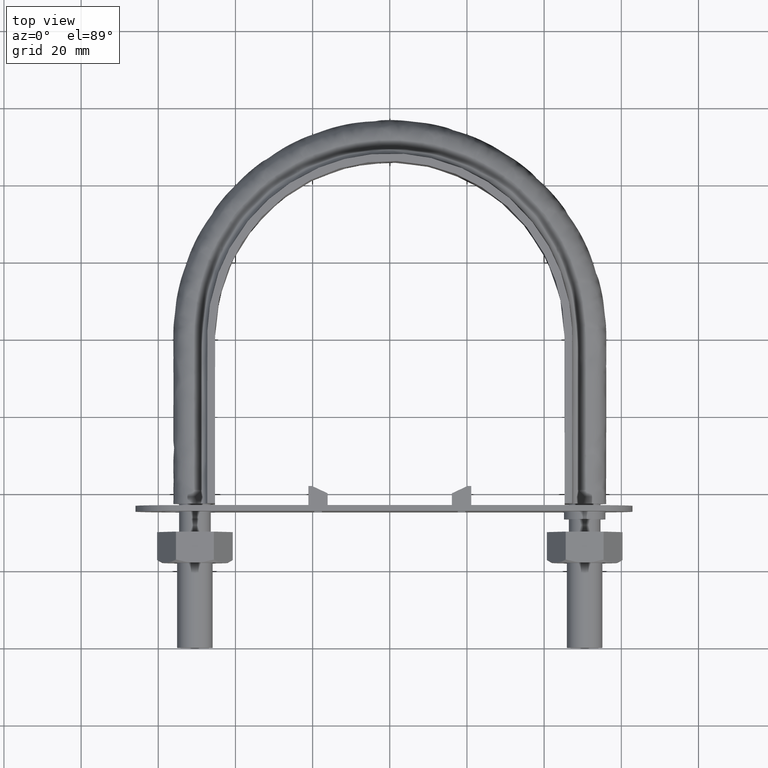
[diagram: clean part render]
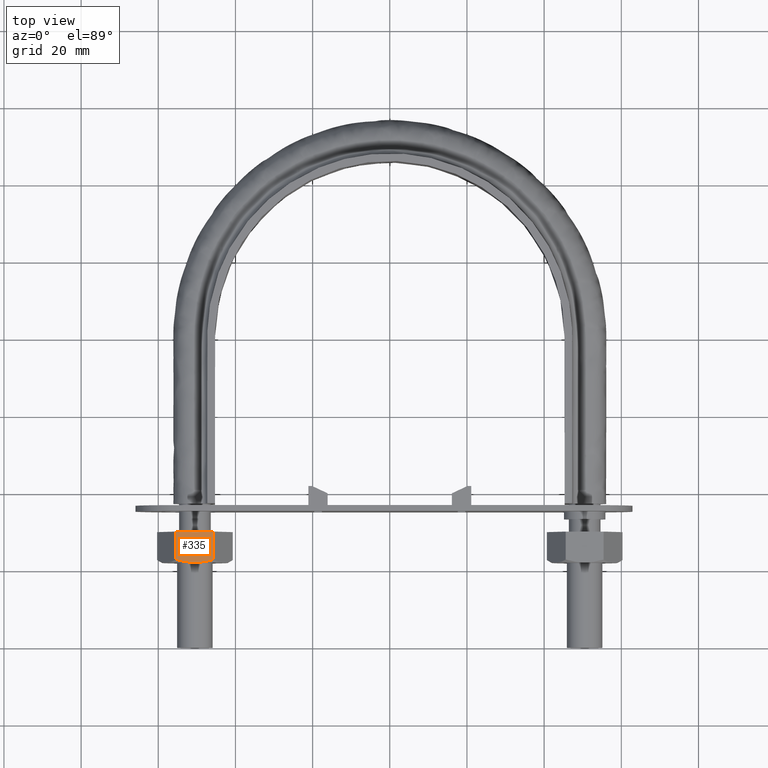
[diagram: same view with one face highlighted and labeled with its STEP entity id]
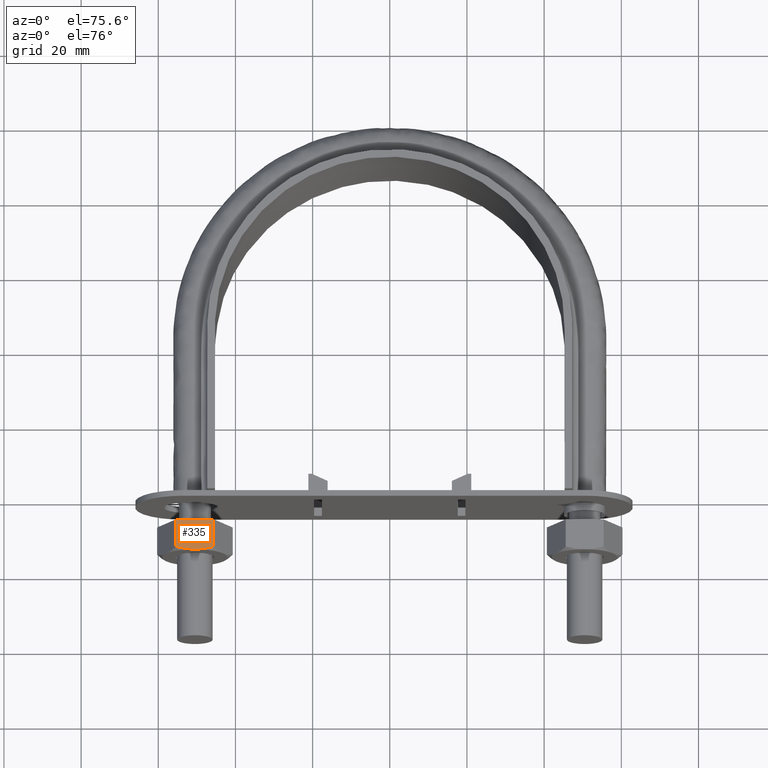
[diagram: same view with one face highlighted and labeled with its STEP entity id]
A machine part, top view. The second image highlights one B-rep face of the part: STEP entity #335.
A second angle (auxiliary view) of the same face is appended — the face is thin or edge-on in the first view.
In plain terms, the highlighted planar face has unit normal (-0, 0, -1).
Its self-contained STEP definition (entity closure, byte-faithful):
#335 = ADVANCED_FACE( '', ( #537 ), #538, .F. );
#537 = FACE_OUTER_BOUND( '', #1604, .T. );
#538 = PLANE( '', #1605 );
#1604 = EDGE_LOOP( '', ( #2178, #2179, #2180, #2181, #2182 ) );
#1605 = AXIS2_PLACEMENT_3D( '', #2183, #2184, #2185 );
#2178 = ORIENTED_EDGE( '', *, *, #2645, .F. );
#2179 = ORIENTED_EDGE( '', *, *, #2646, .F. );
#2180 = ORIENTED_EDGE( '', *, *, #2644, .F. );
#2181 = ORIENTED_EDGE( '', *, *, #2647, .F. );
#2182 = ORIENTED_EDGE( '', *, *, #2648, .F. );
#2183 = CARTESIAN_POINT( '', ( -55.4074772876123, 30.0000000000000, 8.50000000028695 ) );
#2184 = DIRECTION( '', ( -5.87450643685378E-011, 6.12303177055068E-017, -1.00000000000000 ) );
#2185 = DIRECTION( '', ( -1.00000000000000, 0.000000000000000, 5.87450643685378E-011 ) );
#2644 = EDGE_CURVE( '', #2972, #2967, #2974, .T. );
#2645 = EDGE_CURVE( '', #2975, #2976, #2977, .T. );
#2646 = EDGE_CURVE( '', #2967, #2975, #2978, .T. );
#2647 = EDGE_CURVE( '', #2979, #2972, #2980, .T. );
#2648 = EDGE_CURVE( '', #2976, #2979, #2981, .F. );
#2967 = VERTEX_POINT( '', #3689 );
#2972 = VERTEX_POINT( '', #3695 );
#2974 = LINE( '', #3697, #3698 );
#2975 = VERTEX_POINT( '', #3699 );
#2976 = VERTEX_POINT( '', #3700 );
#2977 = B_SPLINE_CURVE_WITH_KNOTS( '', 3, ( #3701, #3702, #3703, #3704, #3705, #3706 ), .UNSPECIFIED., .F., .F., ( 4, 2, 4 ), ( 5.64785044985378E-017, 0.00246745482903668, 0.00493490965807330 ), .UNSPECIFIED. );
#2978 = B_SPLINE_CURVE_WITH_KNOTS( '', 3, ( #3707, #3708, #3709, #3710, #3711, #3712 ), .UNSPECIFIED., .F., .F., ( 4, 2, 4 ), ( 1.17275518397300E-015, 0.00246745482903666, 0.00493490965807215 ), .UNSPECIFIED. );
#2979 = VERTEX_POINT( '', #3713 );
#2980 = LINE( '', #3714, #3715 );
#2981 = LINE( '', #3716, #3717 );
#3689 = CARTESIAN_POINT( '', ( -45.6225006401966, 22.7505553499472, 8.49999999971213 ) );
#3695 = CARTESIAN_POINT( '', ( -45.6225006401955, 30.0000000000000, 8.49999999971213 ) );
#3697 = CARTESIAN_POINT( '', ( -45.6225006401955, 30.0000000000000, 8.49999999971213 ) );
#3698 = VECTOR( '', #4186, 1000.00000000000 );
#3699 = CARTESIAN_POINT( '', ( -50.4999999995007, 22.0000000000006, 8.49999999999933 ) );
#3700 = CARTESIAN_POINT( '', ( -55.3774993588047, 22.7505553499472, 8.50000000028519 ) );
#3701 = CARTESIAN_POINT( '', ( -50.4999999995007, 22.0000000000002, 8.49999999999866 ) );
#3702 = CARTESIAN_POINT( '', ( -51.3321659496916, 22.0000000000002, 8.50000000004755 ) );
#3703 = CARTESIAN_POINT( '', ( -52.1533062471868, 22.0716504305293, 8.50000000009578 ) );
#3704 = CARTESIAN_POINT( '', ( -53.7774431751643, 22.3328582843711, 8.50000000019119 ) );
#3705 = CARTESIAN_POINT( '', ( -54.5805717061778, 22.5215585493659, 8.50000000023837 ) );
#3706 = CARTESIAN_POINT( '', ( -55.3774993588036, 22.7505553499468, 8.50000000028519 ) );
#3707 = CARTESIAN_POINT( '', ( -45.6225006401977, 22.7505553499468, 8.49999999971213 ) );
#3708 = CARTESIAN_POINT( '', ( -46.4194282928232, 22.5215585493660, 8.49999999975895 ) );
#3709 = CARTESIAN_POINT( '', ( -47.2225568238385, 22.3328582843708, 8.49999999980613 ) );
#3710 = CARTESIAN_POINT( '', ( -48.8466937518154, 22.0716504305292, 8.49999999990154 ) );
#3711 = CARTESIAN_POINT( '', ( -49.6678340493102, 22.0000000000002, 8.49999999994977 ) );
#3712 = CARTESIAN_POINT( '', ( -50.4999999995007, 22.0000000000002, 8.49999999999866 ) );
#3713 = CARTESIAN_POINT( '', ( -55.3774993588059, 30.0000000000000, 8.50000000028519 ) );
#3714 = CARTESIAN_POINT( '', ( -45.5999999995008, 30.0000000000000, 8.49999999971081 ) );
#3715 = VECTOR( '', #4187, 1000.00000000000 );
#3716 = CARTESIAN_POINT( '', ( -55.3774993588059, 30.0000000000000, 8.50000000028519 ) );
#3717 = VECTOR( '', #4188, 1000.00000000000 );
#4186 = DIRECTION( '', ( -2.44921270764475E-016, -1.00000000000000, -6.12303176911185E-017 ) );
#4187 = DIRECTION( '', ( 1.00000000000000, -2.44921270760878E-016, -5.87450643685378E-011 ) );
#4188 = DIRECTION( '', ( -2.44921270764475E-016, -1.00000000000000, -6.12303176911185E-017 ) );